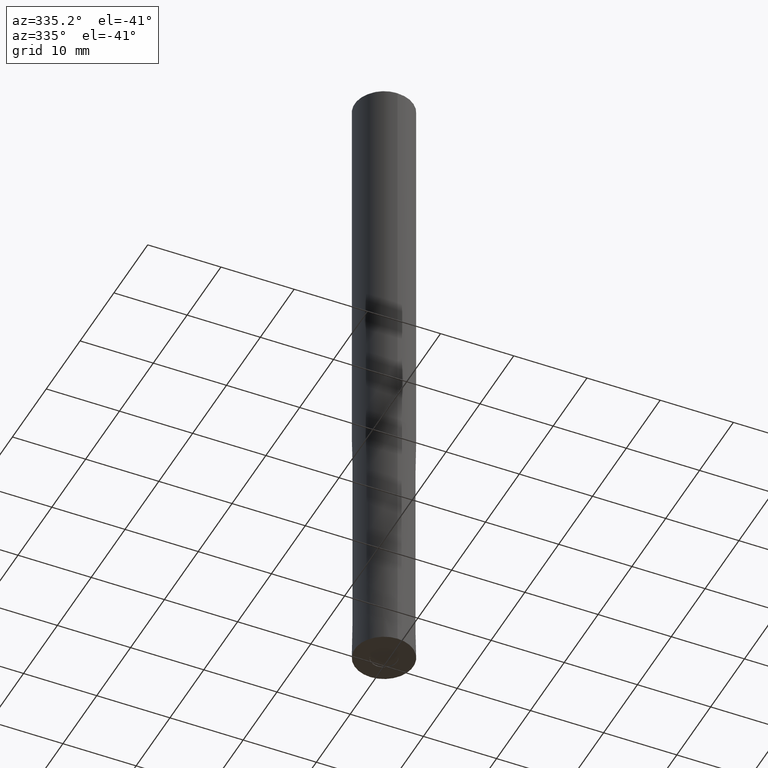
[diagram: clean part render]
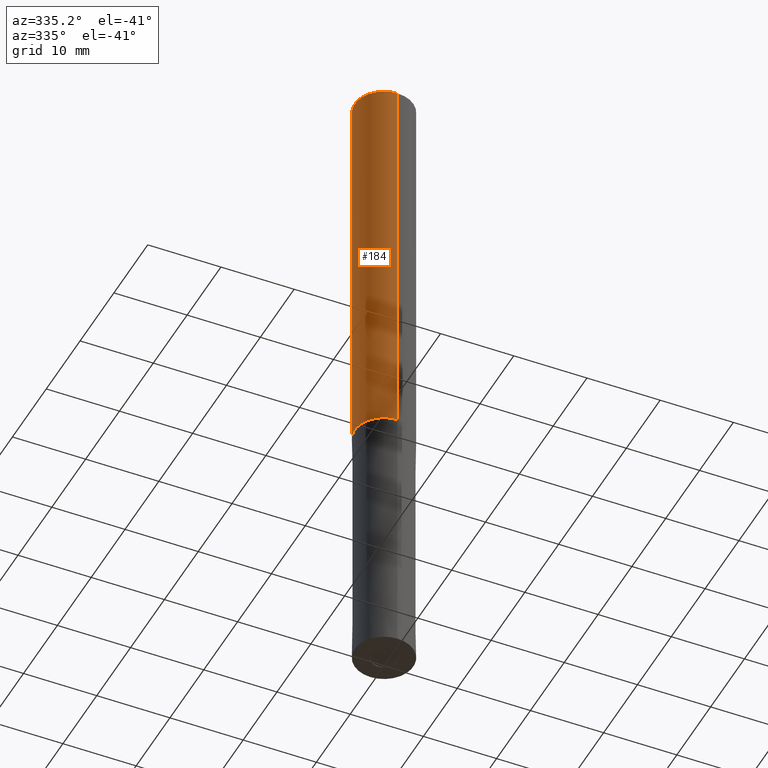
[diagram: same view with one face highlighted and labeled with its STEP entity id]
A machine part, auxiliary view. The second image highlights one B-rep face of the part: STEP entity #184.
In plain terms, the highlighted cylindrical surface (edge-blend (fillet) strip) has radius 4 mm, axis along (-0, -0, 1).
Its self-contained STEP definition (entity closure, byte-faithful):
#146=EDGE_CURVE('',#196,#150,#300,.T.);
#150=VERTEX_POINT('',#304);
#158=EDGE_CURVE('',#182,#200,#312,.T.);
#182=VERTEX_POINT('',#340);
#184=ADVANCED_FACE('',(#342),#343,.T.);
#196=VERTEX_POINT('',#358);
#200=VERTEX_POINT('',#362);
#208=EDGE_CURVE('',#196,#200,#371,.T.);
#210=EDGE_CURVE('',#150,#182,#373,.T.);
#300=LINE('',#472,#473);
#304=CARTESIAN_POINT('',(4.89842541528951E-016,-4.0,-0.399999999999999));
#312=LINE('',#489,#490);
#340=CARTESIAN_POINT('',(0.0,4.0,-0.399999999999999));
#342=FACE_OUTER_BOUND('',#525,.T.);
#343=CYLINDRICAL_SURFACE('',#526,4.0);
#358=CARTESIAN_POINT('',(4.89842541528951E-016,-4.0,-54.0));
#362=CARTESIAN_POINT('',(0.0,4.0,-54.0));
#371=CIRCLE('',#559,4.0);
#373=CIRCLE('',#562,4.0);
#472=CARTESIAN_POINT('',(4.89842541528951E-016,-4.0,-27.2));
#473=VECTOR('',#665,1.0);
#489=CARTESIAN_POINT('',(-4.89842541528951E-016,4.0,-27.2));
#490=VECTOR('',#675,1.0);
#525=EDGE_LOOP('',(#711,#712,#713,#714));
#526=AXIS2_PLACEMENT_3D('',#715,#716,#717);
#559=AXIS2_PLACEMENT_3D('',#747,#748,#749);
#562=AXIS2_PLACEMENT_3D('',#750,#751,#752);
#665=DIRECTION('',(-0.0,-0.0,1.0));
#675=DIRECTION('',(0.0,0.0,-1.0));
#711=ORIENTED_EDGE('',*,*,#158,.T.);
#712=ORIENTED_EDGE('',*,*,#208,.F.);
#713=ORIENTED_EDGE('',*,*,#146,.T.);
#714=ORIENTED_EDGE('',*,*,#210,.T.);
#715=CARTESIAN_POINT('',(0.0,0.0,-27.2));
#716=DIRECTION('',(-0.0,-0.0,1.0));
#717=DIRECTION('',(0.0,1.0,0.0));
#747=CARTESIAN_POINT('',(0.0,0.0,-54.0));
#748=DIRECTION('',(0.0,0.0,-1.0));
#749=DIRECTION('',(0.0,1.0,0.0));
#750=CARTESIAN_POINT('',(0.0,0.0,-0.399999999999999));
#751=DIRECTION('',(0.0,0.0,-1.0));
#752=DIRECTION('',(0.0,1.0,0.0));